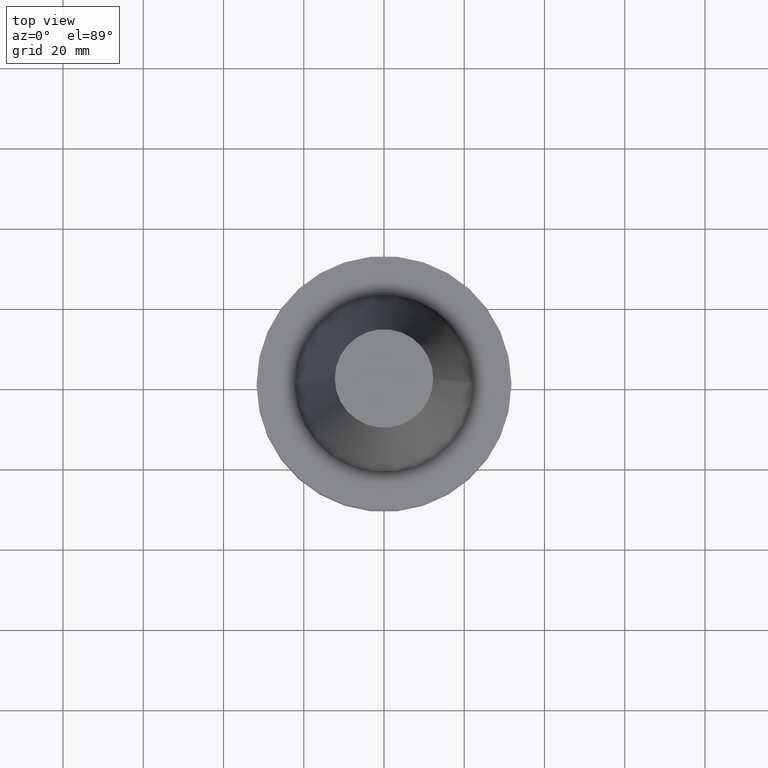
[diagram: clean part render]
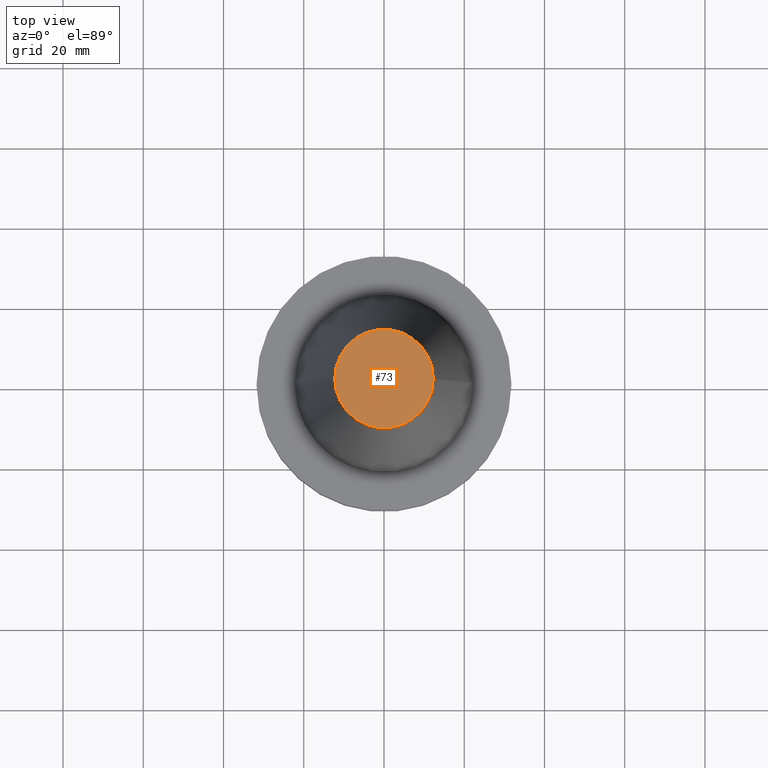
[diagram: same view with one face highlighted and labeled with its STEP entity id]
A machine part, top view. The second image highlights one B-rep face of the part: STEP entity #73.
In plain terms, the highlighted planar face has unit normal (0, 0, -1).
Its self-contained STEP definition (entity closure, byte-faithful):
#4 = AXIS2_PLACEMENT_3D ( 'NONE', #557, #18, #663 ) ;
#17 = CIRCLE ( 'NONE', #183, 12.27178102086201150 ) ;
#18 = DIRECTION ( 'NONE',  ( 0.000000000000000000, 0.000000000000000000, -1.000000000000000000 ) ) ;
#22 = DIRECTION ( 'NONE',  ( -0.000000000000000000, -0.000000000000000000, 1.000000000000000000 ) ) ;
#63 = EDGE_LOOP ( 'NONE', ( #539, #753 ) ) ;
#73 = ADVANCED_FACE ( 'NONE', ( #609 ), #78, .F. ) ;
#76 = CARTESIAN_POINT ( 'NONE',  ( 0.000000000000000000, 0.000000000000000000, 68.25000000000000000 ) ) ;
#78 = PLANE ( 'NONE',  #4 ) ;
#96 = AXIS2_PLACEMENT_3D ( 'NONE', #563, #22, #266 ) ;
#125 = VERTEX_POINT ( 'NONE', #338 ) ;
#183 = AXIS2_PLACEMENT_3D ( 'NONE', #76, #434, #672 ) ;
#242 = CIRCLE ( 'NONE', #96, 12.27178102086201150 ) ;
#266 = DIRECTION ( 'NONE',  ( 1.000000000000000000, 0.000000000000000000, 0.000000000000000000 ) ) ;
#304 = VERTEX_POINT ( 'NONE', #713 ) ;
#338 = CARTESIAN_POINT ( 'NONE',  ( 12.27178102086201150, 2.112318622904291439E-15, 68.25000000000000000 ) ) ;
#434 = DIRECTION ( 'NONE',  ( -0.000000000000000000, -0.000000000000000000, 1.000000000000000000 ) ) ;
#508 = EDGE_CURVE ( 'NONE', #304, #125, #17, .T. ) ;
#539 = ORIENTED_EDGE ( 'NONE', *, *, #508, .T. ) ;
#557 = CARTESIAN_POINT ( 'NONE',  ( 0.000000000000000000, 12.27178102086201150, 68.25000000000000000 ) ) ;
#563 = CARTESIAN_POINT ( 'NONE',  ( 0.000000000000000000, 0.000000000000000000, 68.25000000000000000 ) ) ;
#609 = FACE_OUTER_BOUND ( 'NONE', #63, .T. ) ;
#663 = DIRECTION ( 'NONE',  ( -1.000000000000000000, 0.000000000000000000, -0.000000000000000000 ) ) ;
#672 = DIRECTION ( 'NONE',  ( 1.000000000000000000, 0.000000000000000000, 0.000000000000000000 ) ) ;
#713 = CARTESIAN_POINT ( 'NONE',  ( -12.27178102086201150, 0.000000000000000000, 68.25000000000000000 ) ) ;
#721 = EDGE_CURVE ( 'NONE', #125, #304, #242, .T. ) ;
#753 = ORIENTED_EDGE ( 'NONE', *, *, #721, .T. ) ;